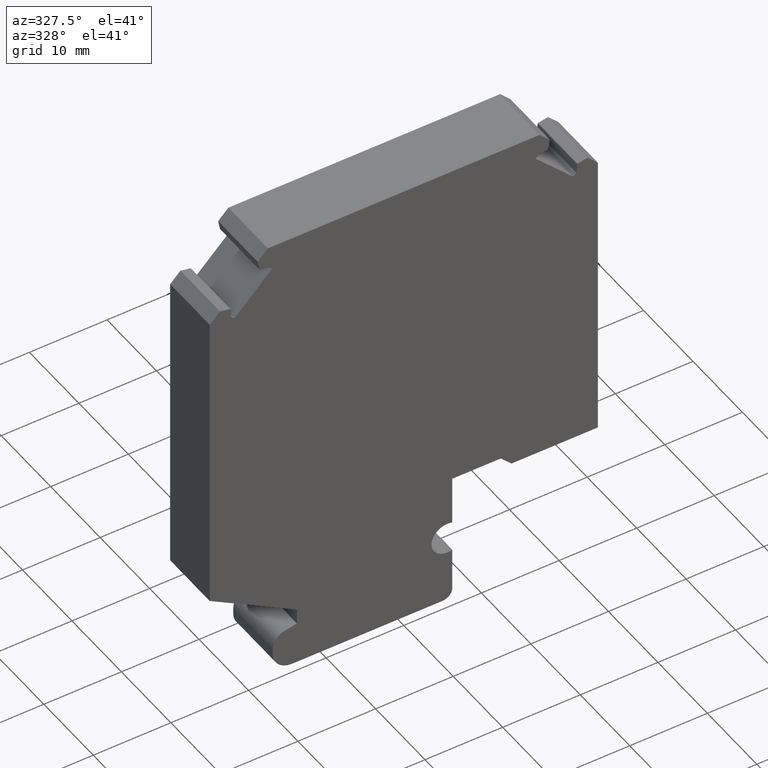
[diagram: clean part render]
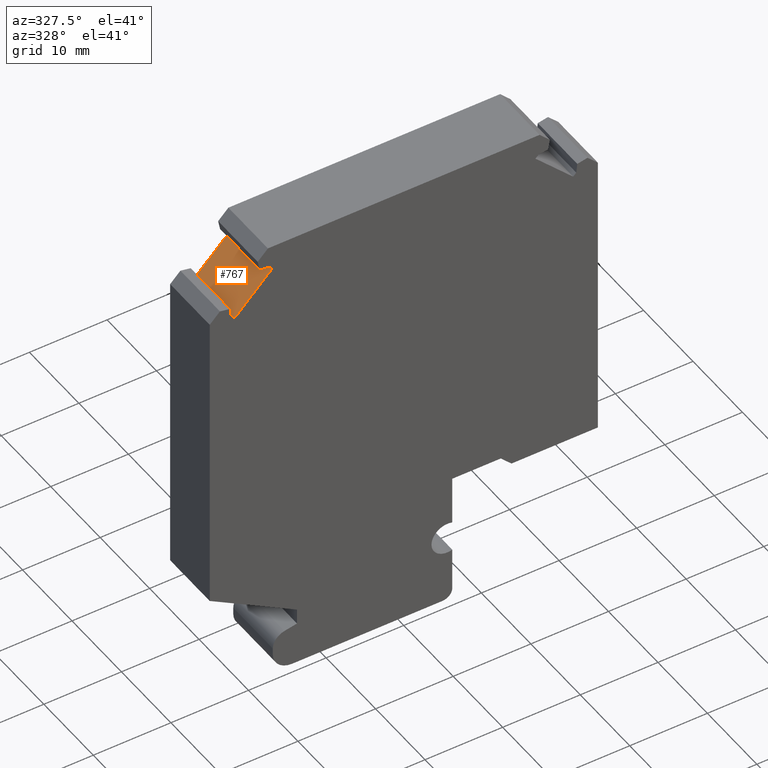
[diagram: same view with one face highlighted and labeled with its STEP entity id]
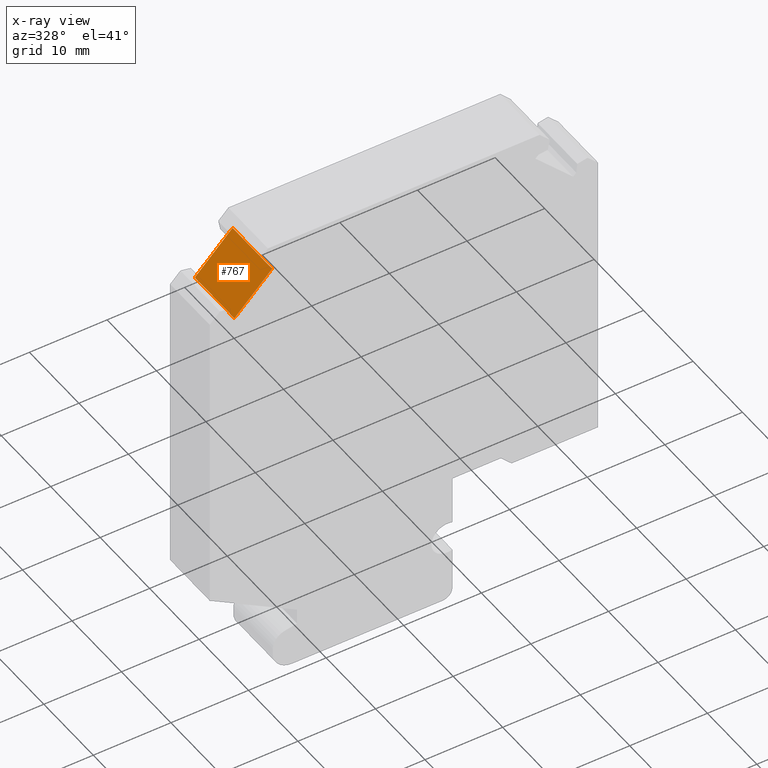
[diagram: x-ray of the same camera — body ghosted, the highlighted face saturated]
A machine part, auxiliary view. The second image highlights one B-rep face of the part: STEP entity #767.
The next image is the same camera in x-ray: the body ghosted, the highlighted face saturated — about 0% of this face is hidden behind the body in this view.
In plain terms, the highlighted planar face has unit normal (0.7071, 0, -0.7071).
Its self-contained STEP definition (entity closure, byte-faithful):
#159=ORIENTED_EDGE('',*,*,#345,.T.);
#160=ORIENTED_EDGE('',*,*,#346,.F.);
#161=ORIENTED_EDGE('',*,*,#347,.F.);
#162=ORIENTED_EDGE('',*,*,#343,.T.);
#343=EDGE_CURVE('',#422,#421,#515,.T.);
#345=EDGE_CURVE('',#421,#423,#517,.T.);
#346=EDGE_CURVE('',#424,#423,#518,.T.);
#347=EDGE_CURVE('',#422,#424,#519,.T.);
#421=VERTEX_POINT('',#1217);
#422=VERTEX_POINT('',#1219);
#423=VERTEX_POINT('',#1223);
#424=VERTEX_POINT('',#1225);
#515=LINE('',#1218,#613);
#517=LINE('',#1222,#615);
#518=LINE('',#1224,#616);
#519=LINE('',#1226,#617);
#613=VECTOR('',#999,1000.);
#615=VECTOR('',#1003,1000.);
#616=VECTOR('',#1004,1000.);
#617=VECTOR('',#1005,1000.);
#658=EDGE_LOOP('',(#159,#160,#161,#162));
#696=FACE_BOUND('',#658,.T.);
#730=PLANE('',#826);
#767=ADVANCED_FACE('',(#696),#730,.F.);
#826=AXIS2_PLACEMENT_3D('',#1221,#1001,#1002);
#999=DIRECTION('',(0.,-1.,0.));
#1001=DIRECTION('',(0.707106781186547,0.,-0.707106781186547));
#1002=DIRECTION('',(-0.707106781186548,0.,-0.707106781186548));
#1003=DIRECTION('',(0.707106781186548,0.,0.707106781186548));
#1004=DIRECTION('',(0.,-1.,0.));
#1005=DIRECTION('',(0.707106781186548,0.,0.707106781186548));
#1217=CARTESIAN_POINT('',(-21.8245242597139,0.,21.5854661658954));
#1218=CARTESIAN_POINT('',(-21.8245242597139,8.,21.5854661658954));
#1219=CARTESIAN_POINT('',(-21.8245242597139,8.,21.5854661658954));
#1221=CARTESIAN_POINT('',(-21.8245242597139,8.,21.5854661658954));
#1222=CARTESIAN_POINT('',(-21.8245242597139,0.,21.5854661658954));
#1223=CARTESIAN_POINT('',(-16.9631651390565,0.,26.4468252865528));
#1224=CARTESIAN_POINT('',(-16.9631651390565,8.,26.4468252865528));
#1225=CARTESIAN_POINT('',(-16.9631651390565,8.,26.4468252865528));
#1226=CARTESIAN_POINT('',(-21.8245242597139,8.,21.5854661658954));